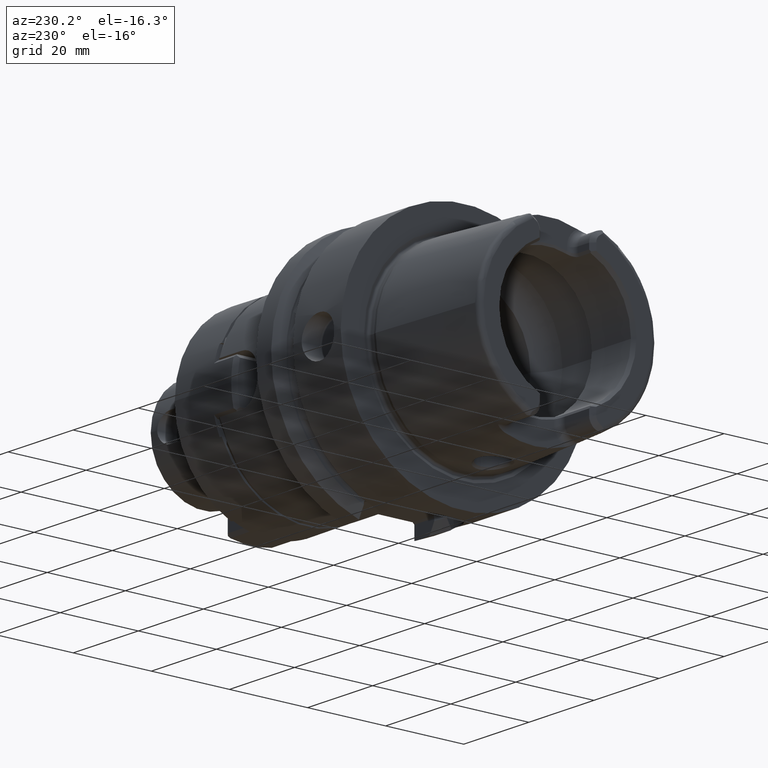
[diagram: clean part render]
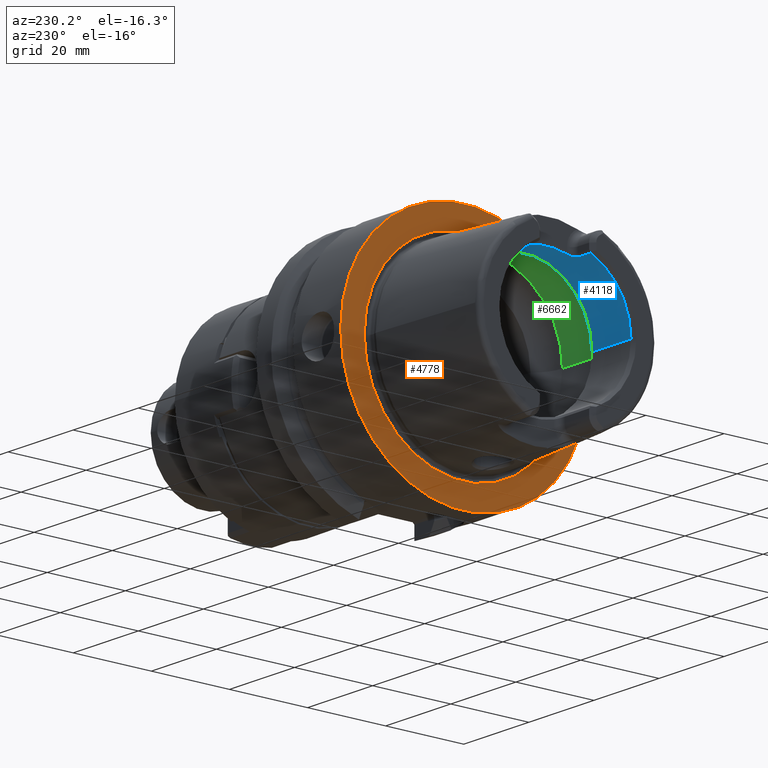
[diagram: same view with three faces highlighted in distinct colors, each labeled with its STEP entity id]
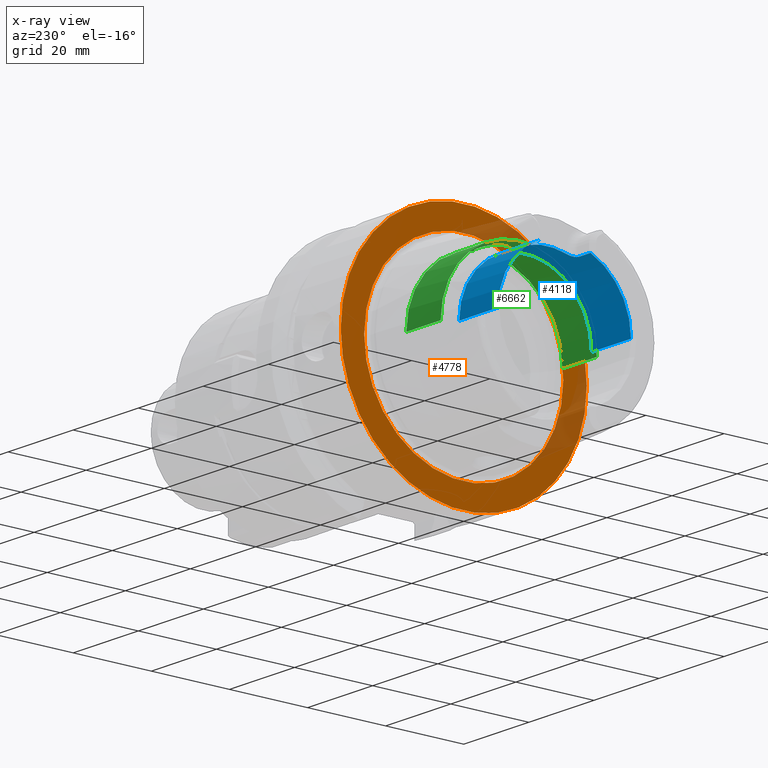
[diagram: x-ray of the same camera — body ghosted, the three highlighted faces saturated]
A machine part, auxiliary view with three faces highlighted in distinct colors.
The next image is the same camera in x-ray (body ghosted, the three faces saturated) — at least one of them is partly hidden behind the body in this view.
Their STEP definitions:

[orange] entity #4778 — the highlighted planar face has unit normal (1, 0, 0).
#1068=CARTESIAN_POINT('',(-1.421085471520E-14,0.E0,0.E0));
#1069=DIRECTION('',(1.E0,0.E0,0.E0));
#1070=DIRECTION('',(0.E0,1.E0,0.E0));
#1071=AXIS2_PLACEMENT_3D('',#1068,#1069,#1070);
#1073=CARTESIAN_POINT('',(-1.421085471520E-14,0.E0,0.E0));
#1074=DIRECTION('',(-1.E0,0.E0,0.E0));
#1075=DIRECTION('',(0.E0,1.E0,0.E0));
#1076=AXIS2_PLACEMENT_3D('',#1073,#1074,#1075);
#1078=CARTESIAN_POINT('',(0.E0,0.E0,0.E0));
#1079=DIRECTION('',(-1.E0,0.E0,0.E0));
#1080=DIRECTION('',(0.E0,-1.E0,0.E0));
#1081=AXIS2_PLACEMENT_3D('',#1078,#1079,#1080);
#1083=CARTESIAN_POINT('',(0.E0,0.E0,0.E0));
#1084=DIRECTION('',(-1.E0,0.E0,0.E0));
#1085=DIRECTION('',(0.E0,1.E0,0.E0));
#1086=AXIS2_PLACEMENT_3D('',#1083,#1084,#1085);
#2977=CARTESIAN_POINT('',(-1.421085471520E-14,3.15E1,0.E0));
#2978=CARTESIAN_POINT('',(-1.421085471520E-14,-3.15E1,0.E0));
#2979=VERTEX_POINT('',#2977);
#2980=VERTEX_POINT('',#2978);
#3005=CARTESIAN_POINT('',(0.E0,-2.549042414966E1,0.E0));
#3006=VERTEX_POINT('',#3005);
#3007=CARTESIAN_POINT('',(0.E0,2.549042414966E1,0.E0));
#3008=VERTEX_POINT('',#3007);
#4763=CARTESIAN_POINT('',(0.E0,0.E0,0.E0));
#4764=DIRECTION('',(1.E0,0.E0,0.E0));
#4765=DIRECTION('',(0.E0,-1.E0,0.E0));
#4766=AXIS2_PLACEMENT_3D('',#4763,#4764,#4765);
#4767=PLANE('',#4766);
#4769=ORIENTED_EDGE('',*,*,#4768,.T.);
#4771=ORIENTED_EDGE('',*,*,#4770,.F.);
#4772=EDGE_LOOP('',(#4769,#4771));
#4773=FACE_OUTER_BOUND('',#4772,.F.);
#4774=ORIENTED_EDGE('',*,*,#4758,.T.);
#4775=ORIENTED_EDGE('',*,*,#4742,.T.);
#4776=EDGE_LOOP('',(#4774,#4775));
#4777=FACE_BOUND('',#4776,.F.);
#4778=ADVANCED_FACE('',(#4773,#4777),#4767,.F.);
#1072=CIRCLE('',#1071,3.15E1);
#1077=CIRCLE('',#1076,3.15E1);
#1082=CIRCLE('',#1081,2.549042414966E1);
#1087=CIRCLE('',#1086,2.549042414966E1);
#4742=EDGE_CURVE('',#3008,#3006,#1087,.T.);
#4758=EDGE_CURVE('',#3006,#3008,#1082,.T.);
#4768=EDGE_CURVE('',#2979,#2980,#1072,.T.);
#4770=EDGE_CURVE('',#2979,#2980,#1077,.T.);

[blue] entity #4118 — the highlighted cylindrical surface (partial cylindrical patch) has radius 17 mm, axis along (1, 0, 0).
#362=CARTESIAN_POINT('',(-3.1E1,0.E0,0.E0));
#363=DIRECTION('',(1.E0,0.E0,0.E0));
#364=DIRECTION('',(0.E0,1.E0,0.E0));
#365=AXIS2_PLACEMENT_3D('',#362,#363,#364);
#394=CARTESIAN_POINT('',(-3.1E1,0.E0,0.E0));
#395=DIRECTION('',(1.E0,0.E0,0.E0));
#396=DIRECTION('',(0.E0,-3.910839598454E-1,9.203550056102E-1));
#397=AXIS2_PLACEMENT_3D('',#394,#395,#396);
#559=DIRECTION('',(1.E0,0.E0,0.E0));
#560=VECTOR('',#559,3.5E0);
#561=CARTESIAN_POINT('',(-3.1E1,6.648427317371E0,1.564603509537E1));
#562=LINE('',#561,#560);
#563=CARTESIAN_POINT('',(-2.571132486541E1,4.77E0,1.631708000838E1));
#564=CARTESIAN_POINT('',(-2.570911463045E1,4.851899929325E0,1.629313806150E1));
#565=CARTESIAN_POINT('',(-2.571539985496E1,5.014300274441E0,1.624433189365E1));
#566=CARTESIAN_POINT('',(-2.575723226820E1,5.255574737127E0,1.616786516493E1));
#567=CARTESIAN_POINT('',(-2.583019759937E1,5.488813832187E0,1.609012650164E1));
#568=CARTESIAN_POINT('',(-2.593222755914E1,5.709311810621E0,1.601314455534E1));
#569=CARTESIAN_POINT('',(-2.606208908479E1,5.913640570765E0,1.593873381343E1));
#570=CARTESIAN_POINT('',(-2.621579663552E1,6.097621457296E0,1.586916363348E1));
#571=CARTESIAN_POINT('',(-2.639004084082E1,6.257927374534E0,1.580654307494E1));
#572=CARTESIAN_POINT('',(-2.658287946713E1,6.394281114327E0,1.575179653388E1));
#573=CARTESIAN_POINT('',(-2.679414325254E1,6.504885265694E0,1.570637036291E1));
#574=CARTESIAN_POINT('',(-2.702072491693E1,6.586740689310E0,1.567215753589E1));
#575=CARTESIAN_POINT('',(-2.725841410654E1,6.637201205541E0,1.565081274977E1));
#576=CARTESIAN_POINT('',(-2.741884128981E1,6.648427317371E0,1.564603509537E1));
#577=CARTESIAN_POINT('',(-2.75E1,6.648427317371E0,1.564603509537E1));
#579=CARTESIAN_POINT('',(-2.571132486541E1,-4.77E0,1.631708000838E1));
#580=CARTESIAN_POINT('',(-2.571132486541E1,-4.151241293882E0,1.649796280277E1));
#581=CARTESIAN_POINT('',(-2.571132889067E1,-2.893125957956E0,1.678926713017E1));
#582=CARTESIAN_POINT('',(-2.571132738120E1,-9.685489423330E-1,
1.700915920873E1));
#583=CARTESIAN_POINT('',(-2.571132738120E1,9.685489423332E-1,1.700915920873E1));
#584=CARTESIAN_POINT('',(-2.571132889067E1,2.893125957955E0,1.678926713017E1));
#585=CARTESIAN_POINT('',(-2.571132486541E1,4.151241293884E0,1.649796280277E1));
#586=CARTESIAN_POINT('',(-2.571132486541E1,4.77E0,1.631708000838E1));
#588=CARTESIAN_POINT('',(-2.75E1,-6.648427317371E0,1.564603509537E1));
#589=CARTESIAN_POINT('',(-2.741886739757E1,-6.648427317371E0,1.564603509537E1));
#590=CARTESIAN_POINT('',(-2.725846026145E1,-6.637216591931E0,1.565080624648E1));
#591=CARTESIAN_POINT('',(-2.702047669465E1,-6.586680175792E0,1.567218311946E1));
#592=CARTESIAN_POINT('',(-2.679396033382E1,-6.504789416100E0,1.570640995358E1));
#593=CARTESIAN_POINT('',(-2.658322850975E1,-6.394447887183E0,1.575172726773E1));
#594=CARTESIAN_POINT('',(-2.639118887217E1,-6.258799446744E0,1.580619508840E1));
#595=CARTESIAN_POINT('',(-2.621738949273E1,-6.099242016698E0,1.586853752436E1));
#596=CARTESIAN_POINT('',(-2.606384631874E1,-5.916012648986E0,1.593785105703E1));
#597=CARTESIAN_POINT('',(-2.593366664869E1,-5.711955003317E0,1.601220141386E1));
#598=CARTESIAN_POINT('',(-2.583107108488E1,-5.491206341112E0,1.608931480424E1));
#599=CARTESIAN_POINT('',(-2.575746962839E1,-5.256749499660E0,1.616748882623E1));
#600=CARTESIAN_POINT('',(-2.571543732099E1,-5.014873021211E0,1.624415783103E1));
#601=CARTESIAN_POINT('',(-2.570911008721E1,-4.852068278437E0,1.629308884771E1));
#602=CARTESIAN_POINT('',(-2.571132486541E1,-4.77E0,1.631708000838E1));
#604=DIRECTION('',(1.E0,0.E0,0.E0));
#605=VECTOR('',#604,3.5E0);
#606=CARTESIAN_POINT('',(-3.1E1,-6.648427317371E0,1.564603509537E1));
#607=LINE('',#606,#605);
#608=CARTESIAN_POINT('',(-1.899602540378E1,0.E0,0.E0));
#609=DIRECTION('',(1.E0,0.E0,0.E0));
#610=DIRECTION('',(0.E0,1.E0,0.E0));
#611=AXIS2_PLACEMENT_3D('',#608,#609,#610);
#666=DIRECTION('',(-1.E0,0.E0,0.E0));
#667=VECTOR('',#666,1.200397459622E1);
#668=CARTESIAN_POINT('',(-1.899602540378E1,1.7E1,0.E0));
#669=LINE('',#668,#667);
#675=DIRECTION('',(-1.E0,0.E0,0.E0));
#676=VECTOR('',#675,1.200397459622E1);
#677=CARTESIAN_POINT('',(-1.899602540378E1,-1.7E1,0.E0));
#678=LINE('',#677,#676);
#3025=CARTESIAN_POINT('',(-1.899602540378E1,1.7E1,0.E0));
#3026=VERTEX_POINT('',#3025);
#3027=CARTESIAN_POINT('',(-3.1E1,1.7E1,0.E0));
#3028=VERTEX_POINT('',#3027);
#3037=CARTESIAN_POINT('',(-1.899602540378E1,-1.7E1,0.E0));
#3038=VERTEX_POINT('',#3037);
#3039=CARTESIAN_POINT('',(-3.1E1,-1.7E1,0.E0));
#3040=VERTEX_POINT('',#3039);
#3106=CARTESIAN_POINT('',(-2.75E1,6.648427317371E0,1.564603509537E1));
#3107=VERTEX_POINT('',#3106);
#3108=CARTESIAN_POINT('',(-2.571132486541E1,4.77E0,1.631708000838E1));
#3109=VERTEX_POINT('',#3108);
#3110=CARTESIAN_POINT('',(-2.75E1,-6.648427317371E0,1.564603509537E1));
#3111=VERTEX_POINT('',#3110);
#3112=CARTESIAN_POINT('',(-2.571132486541E1,-4.77E0,1.631708000838E1));
#3113=VERTEX_POINT('',#3112);
#3118=CARTESIAN_POINT('',(-3.1E1,6.648427317371E0,1.564603509537E1));
#3119=VERTEX_POINT('',#3118);
#3120=CARTESIAN_POINT('',(-3.1E1,-6.648427317371E0,1.564603509537E1));
#3121=VERTEX_POINT('',#3120);
#4097=CARTESIAN_POINT('',(-3.41E1,0.E0,0.E0));
#4098=DIRECTION('',(1.E0,0.E0,0.E0));
#4099=DIRECTION('',(0.E0,-1.E0,0.E0));
#4100=AXIS2_PLACEMENT_3D('',#4097,#4098,#4099);
#4101=CYLINDRICAL_SURFACE('',#4100,1.7E1);
#4102=ORIENTED_EDGE('',*,*,#3834,.T.);
#4104=ORIENTED_EDGE('',*,*,#4103,.F.);
#4105=ORIENTED_EDGE('',*,*,#3982,.F.);
#4106=ORIENTED_EDGE('',*,*,#4037,.F.);
#4107=ORIENTED_EDGE('',*,*,#4052,.F.);
#4108=ORIENTED_EDGE('',*,*,#3799,.T.);
#4110=ORIENTED_EDGE('',*,*,#4109,.F.);
#4112=ORIENTED_EDGE('',*,*,#4111,.F.);
#4114=ORIENTED_EDGE('',*,*,#4113,.T.);
#4115=ORIENTED_EDGE('',*,*,#3779,.T.);
#4116=EDGE_LOOP('',(#4102,#4104,#4105,#4106,#4107,#4108,#4110,#4112,#4114,
#4115));
#4117=FACE_OUTER_BOUND('',#4116,.F.);
#4118=ADVANCED_FACE('',(#4117),#4101,.F.);
#366=CIRCLE('',#365,1.7E1);
#398=CIRCLE('',#397,1.7E1);
#578=B_SPLINE_CURVE_WITH_KNOTS('',3,(#563,#564,#565,#566,#567,#568,#569,#570,
#571,#572,#573,#574,#575,#576,#577),.UNSPECIFIED.,.F.,.F.,(4,1,1,1,1,1,1,1,1,1,
1,1,4),(0.E0,8.333333333333E-2,1.666666666667E-1,2.5E-1,3.333333333333E-1,
4.166666666667E-1,5.E-1,5.833333333333E-1,6.666666666667E-1,7.5E-1,
8.333333333333E-1,9.166666666667E-1,1.E0),.UNSPECIFIED.);
#587=B_SPLINE_CURVE_WITH_KNOTS('',3,(#579,#580,#581,#582,#583,#584,#585,#586),
.UNSPECIFIED.,.F.,.F.,(4,1,1,1,1,4),(0.E0,2.E-1,4.E-1,6.E-1,8.E-1,1.E0),
.UNSPECIFIED.);
#603=B_SPLINE_CURVE_WITH_KNOTS('',3,(#588,#589,#590,#591,#592,#593,#594,#595,
#596,#597,#598,#599,#600,#601,#602),.UNSPECIFIED.,.F.,.F.,(4,1,1,1,1,1,1,1,1,1,
1,1,4),(0.E0,8.333333333333E-2,1.666666666667E-1,2.5E-1,3.333333333333E-1,
4.166666666667E-1,5.E-1,5.833333333333E-1,6.666666666667E-1,7.5E-1,
8.333333333333E-1,9.166666666667E-1,1.E0),.UNSPECIFIED.);
#612=CIRCLE('',#611,1.7E1);
#3779=EDGE_CURVE('',#3028,#3119,#366,.T.);
#3799=EDGE_CURVE('',#3121,#3040,#398,.T.);
#3834=EDGE_CURVE('',#3119,#3107,#562,.T.);
#3982=EDGE_CURVE('',#3113,#3109,#587,.T.);
#4037=EDGE_CURVE('',#3111,#3113,#603,.T.);
#4052=EDGE_CURVE('',#3121,#3111,#607,.T.);
#4103=EDGE_CURVE('',#3109,#3107,#578,.T.);
#4109=EDGE_CURVE('',#3038,#3040,#678,.T.);
#4111=EDGE_CURVE('',#3026,#3038,#612,.T.);
#4113=EDGE_CURVE('',#3026,#3028,#669,.T.);

[green] entity #6662 — the highlighted cylindrical surface (partial cylindrical patch) has radius 20 mm, axis along (1, 0, 0).
#2603=CARTESIAN_POINT('',(-6.344997998398E0,2.648294615690E0,1.982388800484E1));
#2605=CARTESIAN_POINT('',(-6.344997998398E0,-2.648294615690E0,
1.982388800484E1));
#2620=CARTESIAN_POINT('',(-6.344997998398E0,2.648294615690E0,1.982388800484E1));
#2621=CARTESIAN_POINT('',(-6.460596585787E0,2.764185981810E0,1.980840595204E1));
#2622=CARTESIAN_POINT('',(-6.705032526468E0,2.979236620594E0,1.977762997767E1));
#2623=CARTESIAN_POINT('',(-7.115707088008E0,3.254820950558E0,1.973390915713E1));
#2624=CARTESIAN_POINT('',(-7.558788067840E0,3.473550756710E0,1.969635481023E1));
#2625=CARTESIAN_POINT('',(-8.021221245910E0,3.630990626018E0,1.966777323779E1));
#2626=CARTESIAN_POINT('',(-8.506803393416E0,3.728808889512E0,1.964936004927E1));
#2627=CARTESIAN_POINT('',(-9.030555145845E0,3.763361449459E0,1.964272649975E1));
#2628=CARTESIAN_POINT('',(-9.606429583869E0,3.716513314942E0,1.965172145674E1));
#2629=CARTESIAN_POINT('',(-1.018737071400E1,3.573599882894E0,1.967844261791E1));
#2630=CARTESIAN_POINT('',(-1.073043578591E1,3.344031986540E0,1.971908086237E1));
#2631=CARTESIAN_POINT('',(-1.122924164708E1,3.034476069484E0,1.976949853857E1));
#2632=CARTESIAN_POINT('',(-1.167539523054E1,2.649612593318E0,1.982521182701E1));
#2633=CARTESIAN_POINT('',(-1.205589435788E1,2.199789113726E0,1.988058991308E1));
#2634=CARTESIAN_POINT('',(-1.236037157112E1,1.698335126266E0,1.993006117584E1));
#2635=CARTESIAN_POINT('',(-1.258308722480E1,1.156984185320E0,1.996912477874E1));
#2636=CARTESIAN_POINT('',(-1.271933931783E1,5.855799559107E-1,
1.999421727083E1));
#2637=CARTESIAN_POINT('',(-1.275E1,1.970790591689E-1,2.E1));
#2638=CARTESIAN_POINT('',(-1.275E1,0.E0,2.E1));
#2640=CARTESIAN_POINT('',(-6.344997998398E0,0.E0,0.E0));
#2641=DIRECTION('',(1.E0,0.E0,0.E0));
#2642=DIRECTION('',(0.E0,1.E0,0.E0));
#2643=AXIS2_PLACEMENT_3D('',#2640,#2641,#2642);
#2645=CARTESIAN_POINT('',(-6.344997998398E0,0.E0,0.E0));
#2646=DIRECTION('',(1.E0,0.E0,0.E0));
#2647=DIRECTION('',(0.E0,-1.324147307845E-1,9.911944002421E-1));
#2648=AXIS2_PLACEMENT_3D('',#2645,#2646,#2647);
#2650=CARTESIAN_POINT('',(-1.275E1,0.E0,2.E1));
#2651=CARTESIAN_POINT('',(-1.275E1,-1.955242925513E-1,2.E1));
#2652=CARTESIAN_POINT('',(-1.271982051521E1,-5.810761079055E-1,
1.999430841785E1));
#2653=CARTESIAN_POINT('',(-1.258557303883E1,-1.148512219472E0,
1.996957850985E1));
#2654=CARTESIAN_POINT('',(-1.236610647030E1,-1.686465533352E0,
1.993104432949E1));
#2655=CARTESIAN_POINT('',(-1.206568486343E1,-2.185767805005E0,
1.988212273505E1));
#2656=CARTESIAN_POINT('',(-1.169008850873E1,-2.634407568635E0,
1.982723415069E1));
#2657=CARTESIAN_POINT('',(-1.124927195009E1,-3.019358385751E0,
1.977181562270E1));
#2658=CARTESIAN_POINT('',(-1.075709032709E1,-3.329824405020E0,
1.972149412598E1));
#2659=CARTESIAN_POINT('',(-1.021949126442E1,-3.562609701439E0,
1.968045031109E1));
#2660=CARTESIAN_POINT('',(-9.641467361370E0,-3.710631949485E0,
1.965284251435E1));
#2661=CARTESIAN_POINT('',(-9.064366496245E0,-3.763073985501E0,
1.964278184632E1));
#2662=CARTESIAN_POINT('',(-8.536701772833E0,-3.732854425270E0,
1.964858745769E1));
#2663=CARTESIAN_POINT('',(-8.044881233754E0,-3.637565201588E0,
1.966655458906E1));
#2664=CARTESIAN_POINT('',(-7.575563176507E0,-3.480761658208E0,
1.969508217317E1));
#2665=CARTESIAN_POINT('',(-7.126022383363E0,-3.261082066667E0,
1.973288259674E1));
#2666=CARTESIAN_POINT('',(-6.709667549471E0,-2.983130387452E0,
1.977705858332E1));
#2667=CARTESIAN_POINT('',(-6.462043566692E0,-2.765636627510E0,
1.980821215871E1));
#2668=CARTESIAN_POINT('',(-6.344997998398E0,-2.648294615690E0,
1.982388800484E1));
#2715=DIRECTION('',(-1.E0,0.E0,0.E0));
#2716=VECTOR('',#2715,1.057256643630E1);
#2717=CARTESIAN_POINT('',(-6.344997998398E0,-2.E1,0.E0));
#2718=LINE('',#2717,#2716);
#2719=DIRECTION('',(-1.E0,0.E0,0.E0));
#2720=VECTOR('',#2719,1.057256643630E1);
#2721=CARTESIAN_POINT('',(-6.344997998398E0,2.E1,0.E0));
#2722=LINE('',#2721,#2720);
#2954=CARTESIAN_POINT('',(-1.691756443470E1,0.E0,0.E0));
#2955=DIRECTION('',(1.E0,0.E0,0.E0));
#2956=DIRECTION('',(0.E0,1.E0,0.E0));
#2957=AXIS2_PLACEMENT_3D('',#2954,#2955,#2956);
#3019=CARTESIAN_POINT('',(-6.344997998398E0,2.E1,0.E0));
#3020=VERTEX_POINT('',#3019);
#3021=CARTESIAN_POINT('',(-1.691756443470E1,2.E1,0.E0));
#3022=VERTEX_POINT('',#3021);
#3031=CARTESIAN_POINT('',(-6.344997998398E0,-2.E1,0.E0));
#3032=VERTEX_POINT('',#3031);
#3033=CARTESIAN_POINT('',(-1.691756443470E1,-2.E1,0.E0));
#3034=VERTEX_POINT('',#3033);
#3201=VERTEX_POINT('',#2603);
#3202=VERTEX_POINT('',#2605);
#3203=VERTEX_POINT('',#2638);
#6645=CARTESIAN_POINT('',(-3.41E1,0.E0,0.E0));
#6646=DIRECTION('',(1.E0,0.E0,0.E0));
#6647=DIRECTION('',(0.E0,-1.E0,0.E0));
#6648=AXIS2_PLACEMENT_3D('',#6645,#6646,#6647);
#6649=CYLINDRICAL_SURFACE('',#6648,2.E1);
#6650=ORIENTED_EDGE('',*,*,#6604,.F.);
#6651=ORIENTED_EDGE('',*,*,#6640,.F.);
#6653=ORIENTED_EDGE('',*,*,#6652,.T.);
#6655=ORIENTED_EDGE('',*,*,#6654,.T.);
#6657=ORIENTED_EDGE('',*,*,#6656,.F.);
#6658=ORIENTED_EDGE('',*,*,#6632,.F.);
#6659=ORIENTED_EDGE('',*,*,#6366,.F.);
#6660=EDGE_LOOP('',(#6650,#6651,#6653,#6655,#6657,#6658,#6659));
#6661=FACE_OUTER_BOUND('',#6660,.F.);
#6662=ADVANCED_FACE('',(#6661),#6649,.F.);
#2639=B_SPLINE_CURVE_WITH_KNOTS('',3,(#2620,#2621,#2622,#2623,#2624,#2625,#2626,
#2627,#2628,#2629,#2630,#2631,#2632,#2633,#2634,#2635,#2636,#2637,#2638),
.UNSPECIFIED.,.F.,.F.,(4,1,1,1,1,1,1,1,1,1,1,1,1,1,1,1,4),(0.E0,6.25E-2,1.25E-1,
1.875E-1,2.5E-1,3.125E-1,3.75E-1,4.375E-1,5.E-1,5.625E-1,6.25E-1,6.875E-1,
7.5E-1,8.125E-1,8.75E-1,9.375E-1,1.E0),.UNSPECIFIED.);
#2644=CIRCLE('',#2643,2.E1);
#2649=CIRCLE('',#2648,2.E1);
#2669=B_SPLINE_CURVE_WITH_KNOTS('',3,(#2650,#2651,#2652,#2653,#2654,#2655,#2656,
#2657,#2658,#2659,#2660,#2661,#2662,#2663,#2664,#2665,#2666,#2667,#2668),
.UNSPECIFIED.,.F.,.F.,(4,1,1,1,1,1,1,1,1,1,1,1,1,1,1,1,4),(0.E0,6.25E-2,1.25E-1,
1.875E-1,2.5E-1,3.125E-1,3.75E-1,4.375E-1,5.E-1,5.625E-1,6.25E-1,6.875E-1,
7.5E-1,8.125E-1,8.75E-1,9.375E-1,1.E0),.UNSPECIFIED.);
#2958=CIRCLE('',#2957,2.E1);
#6366=EDGE_CURVE('',#3203,#3202,#2669,.T.);
#6604=EDGE_CURVE('',#3201,#3203,#2639,.T.);
#6632=EDGE_CURVE('',#3202,#3032,#2649,.T.);
#6640=EDGE_CURVE('',#3020,#3201,#2644,.T.);
#6652=EDGE_CURVE('',#3020,#3022,#2722,.T.);
#6654=EDGE_CURVE('',#3022,#3034,#2958,.T.);
#6656=EDGE_CURVE('',#3032,#3034,#2718,.T.);